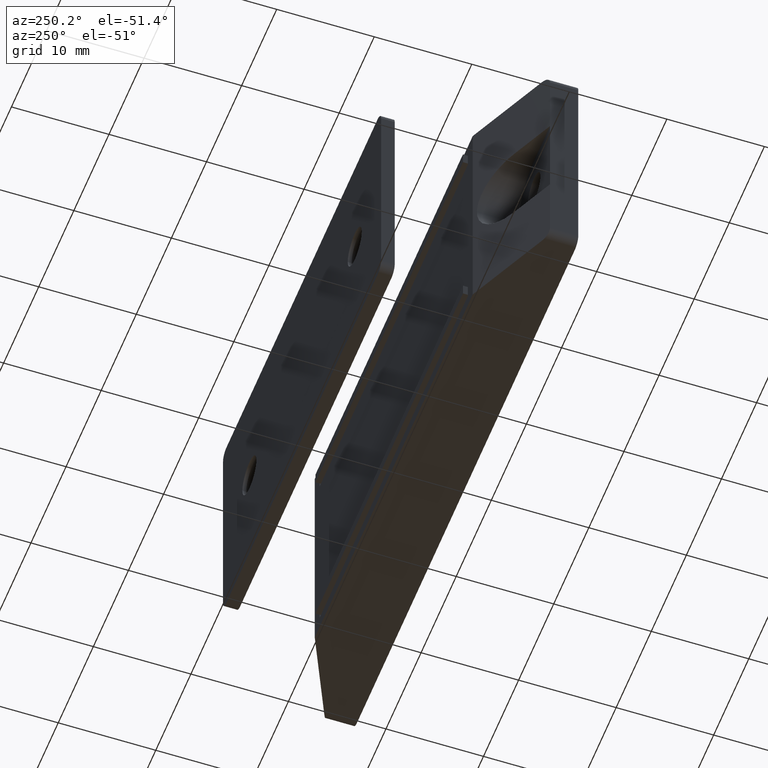
[diagram: clean part render]
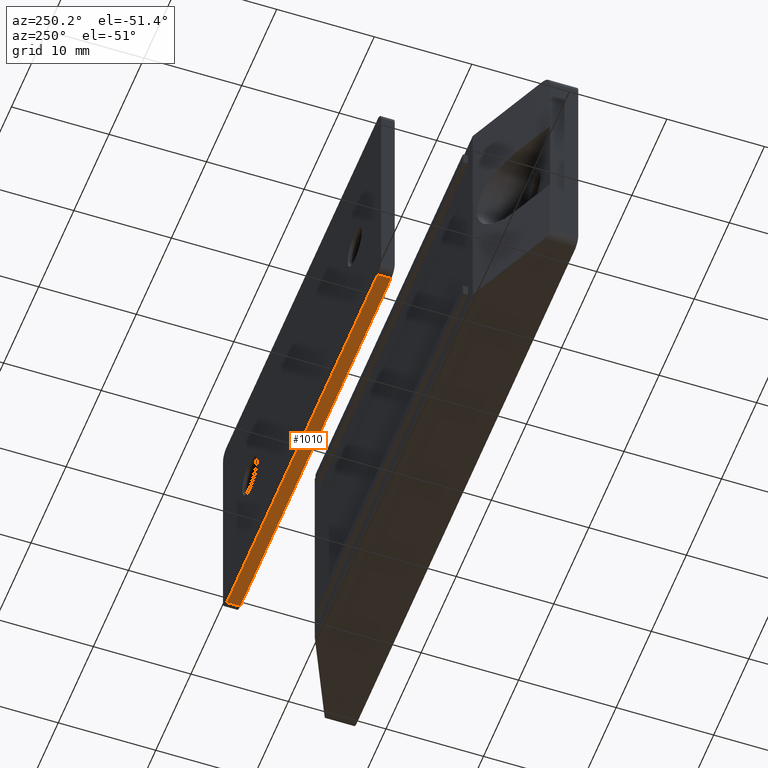
[diagram: same view with one face highlighted and labeled with its STEP entity id]
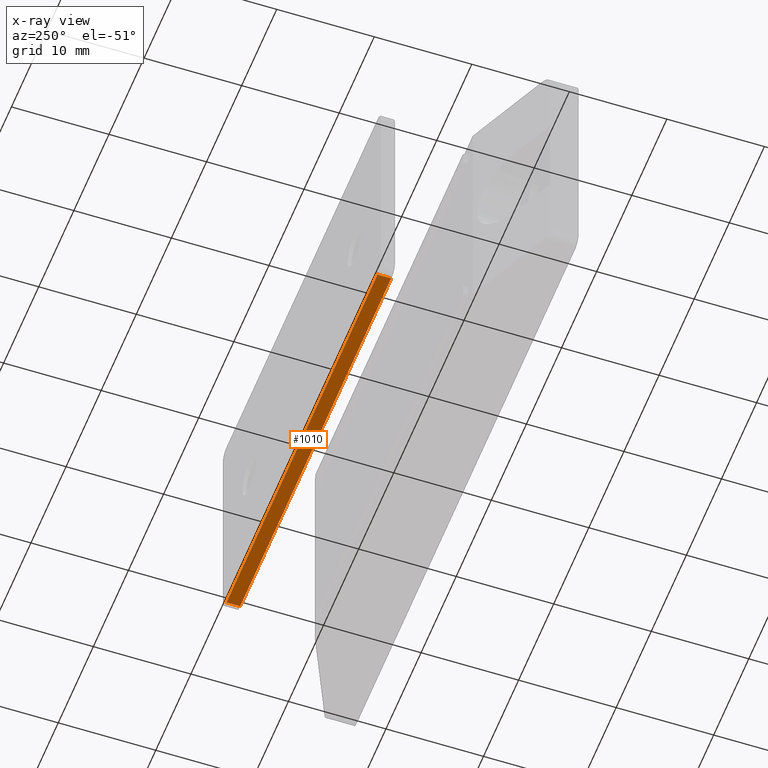
[diagram: x-ray of the same camera — body ghosted, the highlighted face saturated]
A machine part, auxiliary view. The second image highlights one B-rep face of the part: STEP entity #1010.
The next image is the same camera in x-ray: the body ghosted, the highlighted face saturated — about 0% of this face is hidden behind the body in this view.
In plain terms, the highlighted planar face has unit normal (0, 0, -1).
Its self-contained STEP definition (entity closure, byte-faithful):
#86=PLANE('',#1104);
#144=FACE_OUTER_BOUND('',#216,.T.);
#216=EDGE_LOOP('',(#890,#891,#892,#893));
#318=LINE('',#1584,#420);
#323=LINE('',#1601,#425);
#328=LINE('',#1619,#430);
#333=LINE('',#1643,#435);
#420=VECTOR('',#1289,1.4);
#425=VECTOR('',#1304,43.);
#430=VECTOR('',#1323,1.4);
#435=VECTOR('',#1354,43.);
#519=VERTEX_POINT('',#1581);
#520=VERTEX_POINT('',#1583);
#527=VERTEX_POINT('',#1599);
#533=VERTEX_POINT('',#1617);
#635=EDGE_CURVE('',#519,#520,#318,.T.);
#644=EDGE_CURVE('',#527,#519,#323,.T.);
#653=EDGE_CURVE('',#533,#527,#328,.T.);
#663=EDGE_CURVE('',#533,#520,#333,.T.);
#890=ORIENTED_EDGE('',*,*,#635,.F.);
#891=ORIENTED_EDGE('',*,*,#644,.F.);
#892=ORIENTED_EDGE('',*,*,#653,.F.);
#893=ORIENTED_EDGE('',*,*,#663,.T.);
#1010=ADVANCED_FACE('',(#144),#86,.T.);
#1104=AXIS2_PLACEMENT_3D('',#1642,#1352,#1353);
#1289=DIRECTION('',(0.,0.,-1.));
#1304=DIRECTION('',(-1.,0.,0.));
#1323=DIRECTION('',(0.,0.,1.));
#1352=DIRECTION('center_axis',(0.,1.,0.));
#1353=DIRECTION('ref_axis',(-1.,0.,0.));
#1354=DIRECTION('',(-1.,0.,0.));
#1581=CARTESIAN_POINT('',(-21.5,12.,2.));
#1583=CARTESIAN_POINT('',(-21.5,12.,0.6));
#1584=CARTESIAN_POINT('',(-21.5,12.,0.6));
#1599=CARTESIAN_POINT('',(21.5,12.,2.));
#1601=CARTESIAN_POINT('',(22.5,12.,2.));
#1617=CARTESIAN_POINT('',(21.5,12.,0.6));
#1619=CARTESIAN_POINT('',(21.5,12.,0.6));
#1642=CARTESIAN_POINT('Origin',(22.5,12.,0.6));
#1643=CARTESIAN_POINT('',(22.5,12.,0.6));